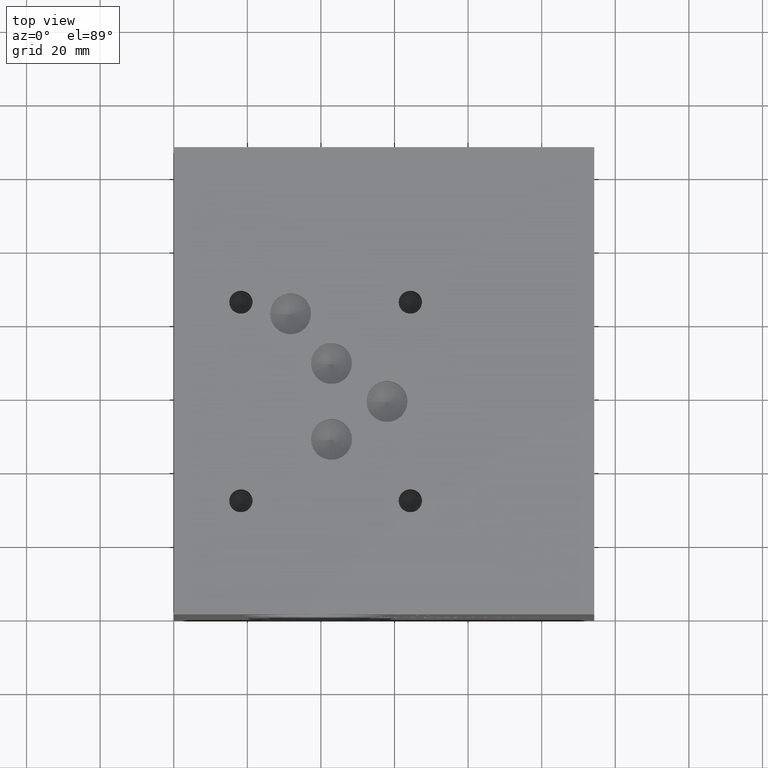
[diagram: clean part render]
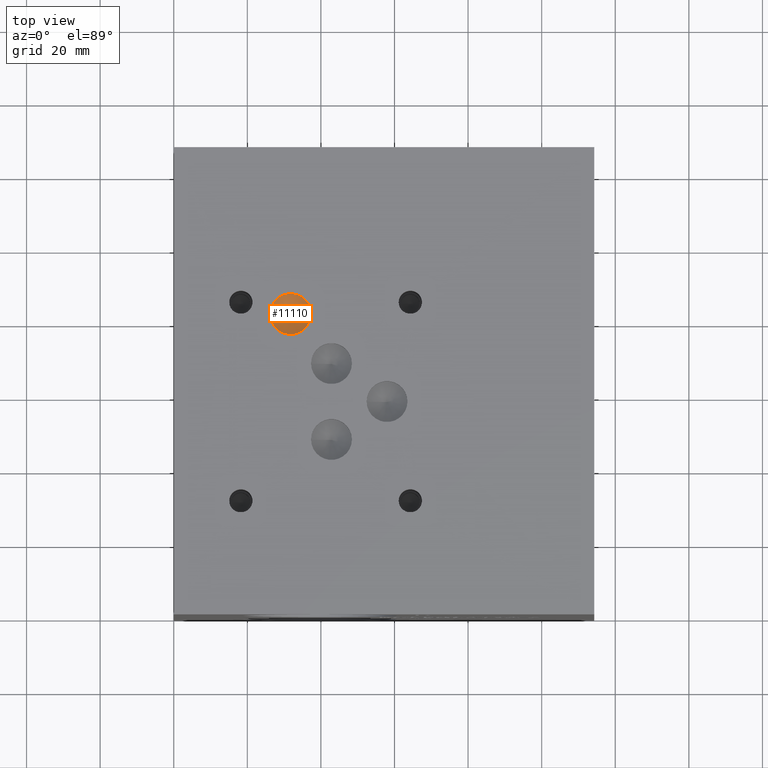
[diagram: same view with one face highlighted and labeled with its STEP entity id]
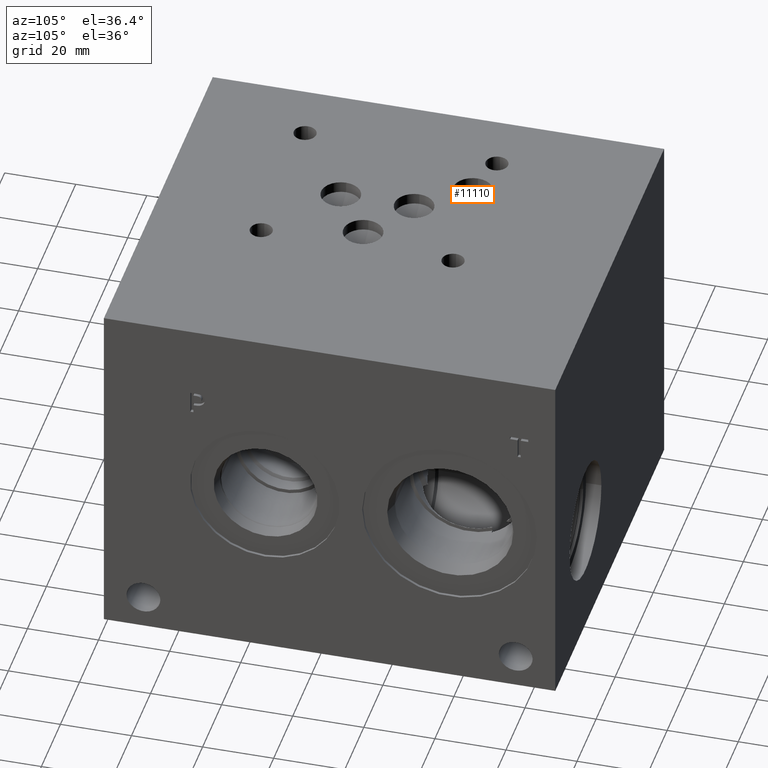
[diagram: same view with one face highlighted and labeled with its STEP entity id]
A machine part, top view. The second image highlights one B-rep face of the part: STEP entity #11110.
A second angle (auxiliary view) of the same face is appended — the face is thin or edge-on in the first view.
In plain terms, the highlighted conical surface has half-angle 60 deg.
Its self-contained STEP definition (entity closure, byte-faithful):
#111=CONICAL_SURFACE('',#11737,2.7813,1.0471975511966);
#303=CIRCLE('',#11738,5.5626);
#304=CIRCLE('',#11739,5.5626);
#1286=FACE_OUTER_BOUND('',#1922,.T.);
#1922=EDGE_LOOP('',(#9861,#9862,#9863,#9864));
#2968=LINE('',#19138,#3993);
#3993=VECTOR('',#13986,2.7813);
#5325=VERTEX_POINT('',#19134);
#5326=VERTEX_POINT('',#19135);
#5327=VERTEX_POINT('',#19137);
#6858=EDGE_CURVE('',#5325,#5326,#303,.T.);
#6859=EDGE_CURVE('',#5326,#5327,#2968,.T.);
#6860=EDGE_CURVE('',#5326,#5325,#304,.T.);
#9861=ORIENTED_EDGE('',*,*,#6858,.T.);
#9862=ORIENTED_EDGE('',*,*,#6859,.T.);
#9863=ORIENTED_EDGE('',*,*,#6859,.F.);
#9864=ORIENTED_EDGE('',*,*,#6860,.T.);
#11110=ADVANCED_FACE('',(#1286),#111,.F.);
#11737=AXIS2_PLACEMENT_3D('',#19133,#13982,#13983);
#11738=AXIS2_PLACEMENT_3D('',#19136,#13984,#13985);
#11739=AXIS2_PLACEMENT_3D('',#19139,#13987,#13988);
#13982=DIRECTION('center_axis',(0.,0.,1.));
#13983=DIRECTION('ref_axis',(1.,0.,0.));
#13984=DIRECTION('center_axis',(0.,0.,1.));
#13985=DIRECTION('ref_axis',(1.,0.,0.));
#13986=DIRECTION('',(0.866025403784439,1.06057523872491E-16,-0.5));
#13987=DIRECTION('center_axis',(0.,0.,1.));
#13988=DIRECTION('ref_axis',(1.,0.,0.));
#19133=CARTESIAN_POINT('Origin',(31.75,81.661,96.7826456963029));
#19134=CARTESIAN_POINT('',(37.3126,81.661,98.38843));
#19135=CARTESIAN_POINT('',(26.1874,81.661,98.38843));
#19136=CARTESIAN_POINT('Origin',(31.75,81.661,98.38843));
#19137=CARTESIAN_POINT('',(31.75,81.661,95.1768613926058));
#19138=CARTESIAN_POINT('',(28.9687,81.661,96.7826456963029));
#19139=CARTESIAN_POINT('Origin',(31.75,81.661,98.38843));